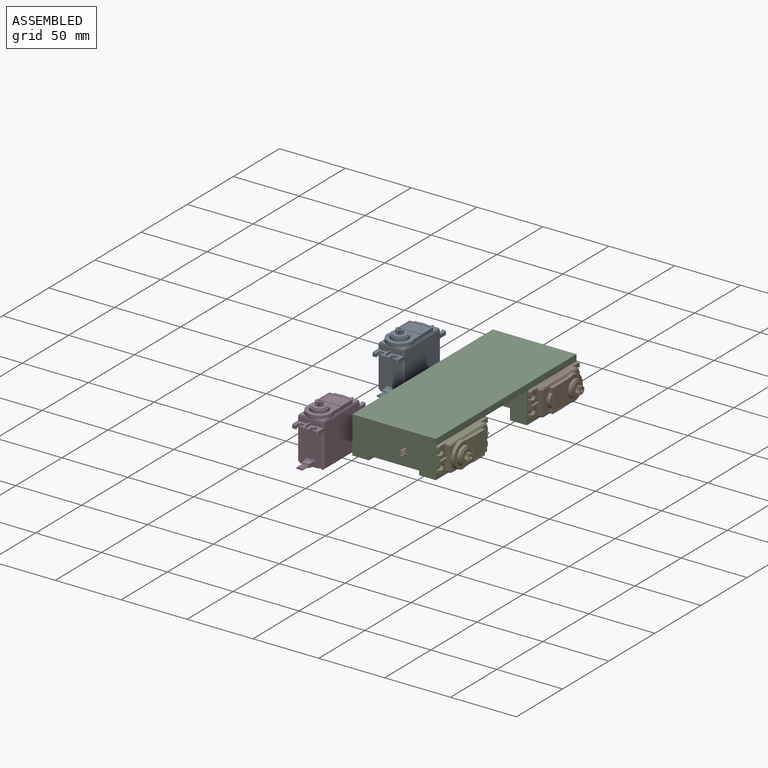
[diagram: assembled view]
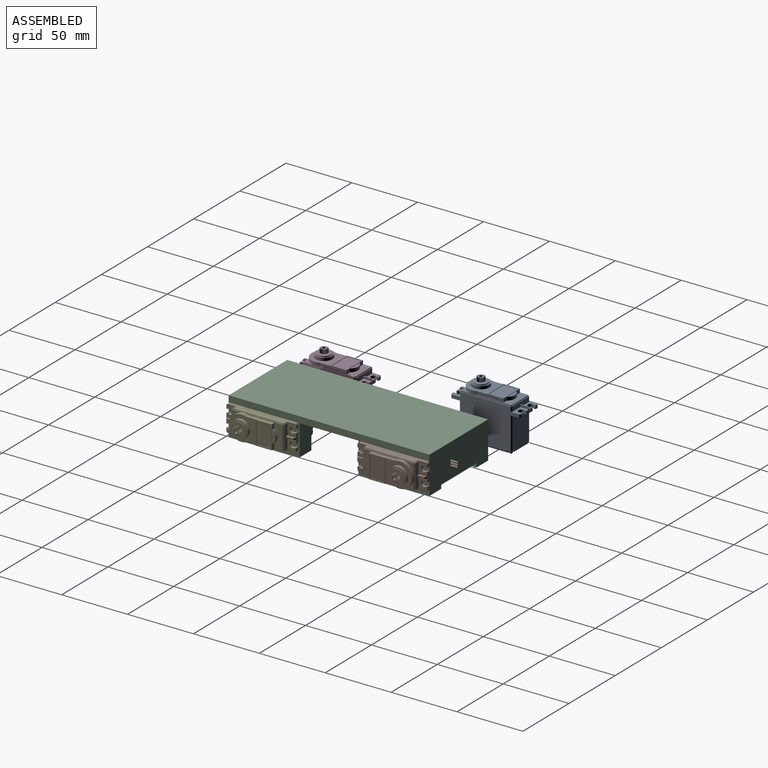
[diagram: assembled view, second angle]
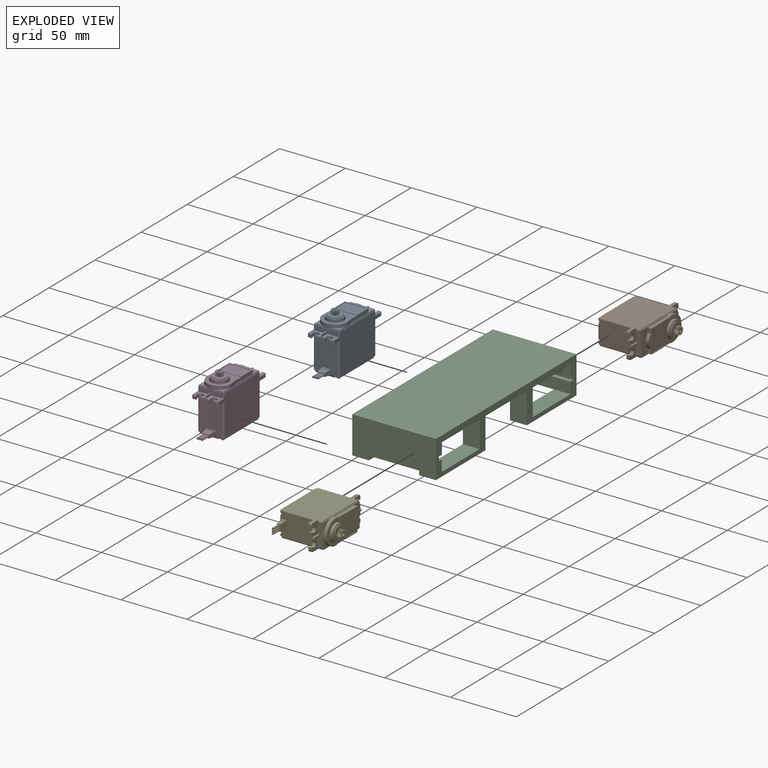
[diagram: exploded view]
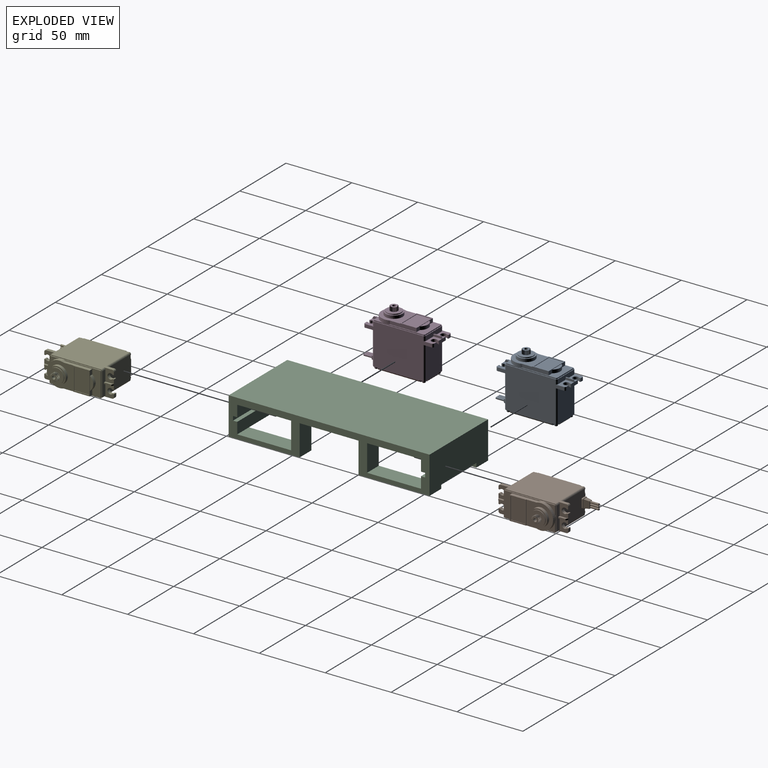
[diagram: exploded view, second angle]
ASSEMBLY  parts=5 mates=6
PART A: 287 faces, bbox 20.2x58.4x42.2 mm
  f0: plane 7x4.25mm, normal (0,-1,0), area 7.6mm2, adj f268,f269,f270,f271,f273,f274,f275,f276
  f1: plane 25.4x17.27mm, normal (0,-1,0), area 404.8mm2, adj f123,f141,f143,f144,f165,f167,f169,f172
  f2: plane 7.27x2.51mm, normal (0,-1,0), area 18.3mm2, adj f114,f115,f123,f127,f128,f266
  f3: plane 6.48x1.55mm, normal (-1,0,0), area 9.3mm2, adj f126,f127,f266,f267
  f4: plane 6.48x1.55mm, normal (1,0,0), area 9.3mm2, adj f126,f128,f266,f267
  f5: plane 20.28x18.87mm, normal (0,0,1), area 202.6mm2, adj f88,f89,f92,f95,f258
  f6: plane 10.3x2.54mm, normal (0,0,1), area 18.3mm2, adj f93,f94
  f7: plane 0.5x0.49mm, normal (0,0,-1), area 0.2mm2, adj f193,f204,f256
  f8: plane 0.48x0.46mm, normal (0,0,-1), area 0.2mm2, adj f201,f202,f256
  f9: plane 0.51x0.47mm, normal (0,0,-1), area 0.2mm2, adj f198,f199,f256
  f10: plane 0.48x0.46mm, normal (0,0,-1), area 0.2mm2, adj f209,f210,f255
  f11: plane 0.5x0.49mm, normal (0,0,-1), area 0.2mm2, adj f218,f220,f255
  f12: plane 0.52x0.5mm, normal (0,0,-1), area 0.2mm2, adj f215,f216,f255
  f13: plane 0.52x0.5mm, normal (0,0,-1), area 0.2mm2, adj f230,f231,f254
  f14: plane 0.51x0.47mm, normal (0,0,-1), area 0.2mm2, adj f227,f228,f254
  f15: plane 0.48x0.46mm, normal (0,0,-1), area 0.2mm2, adj f224,f225,f254
  f16: plane 0.51x0.47mm, normal (0,0,-1), area 0.2mm2, adj f243,f244,f253
  f17: plane 0.52x0.5mm, normal (0,0,-1), area 0.2mm2, adj f240,f241,f253
  f18: plane 0.5x0.49mm, normal (0,0,-1), area 0.2mm2, adj f238,f249,f253
  f19: plane 3.96x3.18mm, normal (0,0,-1), area 5mm2, adj f185,f187,f189,f190,f234
  f20: plane 3.96x3.18mm, normal (0,0,-1), area 5mm2, adj f161,f163,f165,f166,f219
  f21: plane 25.4x17.27mm, normal (0,1,0), area 434.3mm2, adj f121,f139,f145,f146,f177,f180,f189,f191
  f22: plane 50.29x31.45mm, normal (1,0,0), area 1203.3mm2, adj f104,f121,f123,f128,f130,f142,f143,f146
  f23: plane 50.29x31.45mm, normal (-1,0,0), area 1203.3mm2, adj f104,f121,f123,f127,f132,f140,f144,f145
  f24: cylinder r=2.81mm len=3.17mm, axis (0,0,1), area 0.7mm2, adj f44,f46,f84,f85
  f25: cylinder r=2.81mm len=3.17mm, axis (0,0,1), area 0.7mm2, adj f44,f46,f82,f83
  f26: cylinder r=2.81mm len=3.17mm, axis (0,0,1), area 0.7mm2, adj f44,f46,f80,f81
  f27: cylinder r=2.81mm len=3.17mm, axis (0,0,1), area 0.7mm2, adj f44,f46,f78,f79
  f28: cylinder r=2.81mm len=3.17mm, axis (0,0,1), area 0.7mm2, adj f44,f46,f76,f77
  f29: cylinder r=2.81mm len=3.17mm, axis (0,0,1), area 0.7mm2, adj f44,f46,f74,f75
  f30: cylinder r=2.81mm len=3.17mm, axis (0,0,1), area 0.7mm2, adj f44,f46,f72,f73
  f31: cylinder r=2.81mm len=3.17mm, axis (0,0,1), area 0.7mm2, adj f44,f46,f70,f71
  f32: cylinder r=2.81mm len=3.17mm, axis (0,0,1), area 0.7mm2, adj f44,f46,f68,f69
  f33: cylinder r=2.81mm len=3.17mm, axis (0,0,1), area 0.7mm2, adj f44,f46,f66,f67
  f34: cylinder r=2.81mm len=3.17mm, axis (0,0,1), area 0.7mm2, adj f44,f46,f64,f65
  f35: cylinder r=2.81mm len=3.17mm, axis (0,0,1), area 0.7mm2, adj f44,f46,f62,f63
  f36: cylinder r=2.81mm len=3.17mm, axis (0,0,1), area 0.7mm2, adj f44,f46,f60,f61
  f37: cylinder r=2.81mm len=3.17mm, axis (0,0,1), area 0.7mm2, adj f44,f46,f58,f59
  f38: cylinder r=2.81mm len=3.17mm, axis (0,0,1), area 0.7mm2, adj f44,f46,f56,f57
  f39: cylinder r=2.81mm len=3.17mm, axis (0,0,1), area 0.7mm2, adj f44,f46,f54,f55
  f40: cylinder r=2.81mm len=3.17mm, axis (0,0,1), area 0.7mm2, adj f44,f46,f52,f53
  f41: cylinder r=2.81mm len=3.17mm, axis (0,0,1), area 0.7mm2, adj f44,f46,f50,f51
  f42: cylinder r=2.81mm len=3.17mm, axis (0,0,1), area 0.7mm2, adj f44,f46,f47,f49
  f43: cylinder r=5.49mm len=10.97mm, axis (0,0,1), area 22.2mm2, adj f44,f87
  f44: plane 10.97x10.97mm, normal (0,0,1), area 73.7mm2, adj f24,f25,f26,f27,f28,f29,f30,f31
  f45: cylinder r=2.81mm len=3.17mm, axis (0,0,1), area 0.7mm2, adj f44,f46,f48,f86
  f46: plane 5.6x5.6mm, normal (0,0,1), area 15.8mm2, adj f24,f25,f26,f27,f28,f29,f30,f31
  f47: plane 3.17x0.58mm, normal (-0.9,0.43,0), area 2mm2, adj f42,f44,f46,f48
  f48: plane 3.17x0.56mm, normal (0.83,0.56,0), area 2.2mm2, adj f44,f45,f46,f47
  f49: plane 3.17x0.65mm, normal (0.96,0.28,0), area 2.2mm2, adj f42,f44,f46,f50
  f50: plane 3.17x0.46mm, normal (-0.72,0.69,0), area 2mm2, adj f41,f44,f46,f49
  f51: plane 3.17x0.68mm, normal (1,-0.03,0), area 2.2mm2, adj f41,f44,f46,f52
  f52: plane 3.17x0.56mm, normal (-0.47,0.88,0), area 2mm2, adj f40,f44,f46,f51
  f53: plane 3.17x0.64mm, normal (0.94,-0.34,0), area 2.2mm2, adj f40,f44,f46,f54
  f54: plane 3.17x0.63mm, normal (-0.18,0.98,0), area 2mm2, adj f39,f44,f46,f53
  f55: plane 3.17x0.54mm, normal (0.79,-0.61,0), area 2.2mm2, adj f39,f44,f46,f56
  f56: plane 3.17x0.63mm, normal (0.13,0.99,0), area 2mm2, adj f38,f44,f46,f55
  f57: plane 3.17x0.56mm, normal (0.56,-0.83,0), area 2.2mm2, adj f38,f44,f46,f58
  f58: plane 3.17x0.58mm, normal (0.43,0.9,0), area 2mm2, adj f37,f44,f46,f57
  f59: plane 3.17x0.65mm, normal (0.28,-0.96,0), area 2.2mm2, adj f37,f44,f46,f60
  f60: plane 3.17x0.46mm, normal (0.69,0.72,0), area 2mm2, adj f36,f44,f46,f59
  f61: plane 3.17x0.68mm, normal (-0.03,-1,0), area 2.2mm2, adj f36,f44,f46,f62
  f62: plane 3.17x0.56mm, normal (0.88,0.47,0), area 2mm2, adj f35,f44,f46,f61
  f63: plane 3.17x0.64mm, normal (-0.34,-0.94,0), area 2.2mm2, adj f35,f44,f46,f64
  f64: plane 3.17x0.63mm, normal (0.98,0.18,0), area 2mm2, adj f34,f44,f46,f63
  f65: plane 3.17x0.54mm, normal (-0.61,-0.79,0), area 2.2mm2, adj f34,f44,f46,f66
  f66: plane 3.17x0.63mm, normal (0.99,-0.13,0), area 2mm2, adj f33,f44,f46,f65
  f67: plane 3.17x0.56mm, normal (-0.83,-0.56,0), area 2.2mm2, adj f33,f44,f46,f68
  f68: plane 3.17x0.58mm, normal (0.9,-0.43,0), area 2mm2, adj f32,f44,f46,f67
  f69: plane 3.17x0.65mm, normal (-0.96,-0.28,0), area 2.2mm2, adj f32,f44,f46,f70
  f70: plane 3.17x0.46mm, normal (0.72,-0.69,0), area 2mm2, adj f31,f44,f46,f69
  f71: plane 3.17x0.68mm, normal (-1,0.03,0), area 2.2mm2, adj f31,f44,f46,f72
  f72: plane 3.17x0.56mm, normal (0.47,-0.88,0), area 2mm2, adj f30,f44,f46,f71
  f73: plane 3.17x0.64mm, normal (-0.94,0.34,0), area 2.2mm2, adj f30,f44,f46,f74
  f74: plane 3.17x0.63mm, normal (0.18,-0.98,0), area 2mm2, adj f29,f44,f46,f73
  f75: plane 3.17x0.54mm, normal (-0.79,0.61,0), area 2.2mm2, adj f29,f44,f46,f76
  f76: plane 3.17x0.63mm, normal (-0.13,-0.99,0), area 2mm2, adj f28,f44,f46,f75
  f77: plane 3.17x0.56mm, normal (-0.56,0.83,0), area 2.2mm2, adj f28,f44,f46,f78
  f78: plane 3.17x0.58mm, normal (-0.43,-0.9,0), area 2mm2, adj f27,f44,f46,f77
  f79: plane 3.17x0.65mm, normal (-0.28,0.96,0), area 2.2mm2, adj f27,f44,f46,f80
  f80: plane 3.17x0.46mm, normal (-0.69,-0.72,0), area 2mm2, adj f26,f44,f46,f79
  f81: plane 3.17x0.68mm, normal (0.03,1,0), area 2.2mm2, adj f26,f44,f46,f82
  f82: plane 3.17x0.56mm, normal (-0.88,-0.47,0), area 2mm2, adj f25,f44,f46,f81
  f83: plane 3.17x0.64mm, normal (0.34,0.94,0), area 2.2mm2, adj f25,f44,f46,f84
  f84: plane 3.17x0.63mm, normal (-0.98,-0.18,0), area 2mm2, adj f24,f44,f46,f83
  f85: plane 3.17x0.54mm, normal (0.61,0.79,0), area 2.2mm2, adj f24,f44,f46,f86
  f86: plane 3.17x0.63mm, normal (-0.99,0.13,0), area 2mm2, adj f44,f45,f46,f85
  f87: plane 12.98x12.98mm, normal (0,0,1), area 37.7mm2, adj f43,f88
  f88: cylinder r=6.49mm len=12.98mm, axis (0,0,1), area 92.3mm2, adj f5,f87
  f89: cylinder r=9.44mm len=18.87mm, axis (0,0,1), area 97.9mm2, adj f5,f90,f91,f92,f95,f96,f97,f99
  f90: plane 8.3x7.07mm, normal (0,0,1), area 16.4mm2, adj f89,f100,f101,f154
  f91: plane 8.3x7.07mm, normal (0,0,1), area 16.4mm2, adj f89,f102,f103,f153
  f92: plane 20.14x2.86mm, normal (1,0,0), area 55.1mm2, adj f5,f89,f93,f96,f257,f258
  f93: plane 17.78x2.86mm, normal (0,1,0), area 24.6mm2, adj f6,f92,f94,f95,f96,f257
  f94: cylinder r=6.49mm len=10.3mm, axis (0,0,1), area 30.2mm2, adj f6,f93,f96
  f95: plane 20.14x2.86mm, normal (-1,0,0), area 55.1mm2, adj f5,f89,f93,f96,f257,f258
  f96: plane 28.87x18.8mm, normal (0,0,1), area 123.6mm2, adj f89,f92,f93,f94,f95,f97,f98,f99
  f97: plane 28.24x0.76mm, normal (1,0,0), area 21.5mm2, adj f89,f96,f104,f155
  f98: plane 17.53x0.76mm, normal (0,1,0), area 13.4mm2, adj f96,f104,f155,f156
  f99: plane 28.24x0.76mm, normal (-1,0,0), area 21.5mm2, adj f89,f96,f104,f156
  f100: plane 7.66x0.76mm, normal (-1,0,0), area 5.8mm2, adj f89,f90,f104,f154
  f101: plane 6.43x0.76mm, normal (0,-1,0), area 4.9mm2, adj f89,f90,f104,f154
  f102: plane 6.43x0.76mm, normal (0,-1,0), area 4.9mm2, adj f89,f91,f104,f153
  f103: plane 7.66x0.76mm, normal (1,0,0), area 5.8mm2, adj f89,f91,f104,f153
  f104: plane 39.88x19.81mm, normal (0,0,1), area 57.6mm2, adj f22,f23,f89,f97,f98,f99,f100,f101
  f105: plane 2.51x1.03mm, normal (-1,0,0), area 2.6mm2, adj f106,f120,f121,f130
  f106: cylinder r=2.18mm len=4.37mm, axis (0,0,1), area 26.6mm2, adj f105,f107,f121,f130
  f107: plane 2.51x1.03mm, normal (1,0,0), area 2.6mm2, adj f106,f108,f121,f130
  f108: plane 7.27x2.51mm, normal (0,1,0), area 18.3mm2, adj f107,f109,f121,f130,f132,f264
  f109: plane 2.51x1.03mm, normal (-1,0,0), area 2.6mm2, adj f108,f110,f121,f132
  f110: cylinder r=2.18mm len=4.37mm, axis (0,0,1), area 26.6mm2, adj f109,f111,f121,f132
  f111: plane 2.51x1.03mm, normal (1,0,0), area 2.6mm2, adj f110,f119,f121,f132
  f112: plane 2.51x1.03mm, normal (-1,0,0), area 2.6mm2, adj f113,f123,f124,f128
  f113: cylinder r=2.18mm len=4.37mm, axis (0,0,1), area 26.6mm2, adj f112,f114,f123,f128
  f114: plane 2.51x1.03mm, normal (1,0,0), area 2.6mm2, adj f2,f113,f123,f128
  f115: plane 2.51x1.03mm, normal (-1,0,0), area 2.6mm2, adj f2,f116,f123,f127
  f116: cylinder r=2.18mm len=4.37mm, axis (0,0,1), area 26.6mm2, adj f115,f117,f123,f127
  f117: plane 2.51x1.03mm, normal (1,0,0), area 2.6mm2, adj f116,f118,f123,f127
  f118: plane 2.51x2.11mm, normal (0,-1,0), area 5.3mm2, adj f117,f123,f127,f150
  f119: plane 2.51x2.11mm, normal (0,1,0), area 5.3mm2, adj f111,f121,f132,f152
  f120: plane 2.51x2.11mm, normal (0,1,0), area 5.3mm2, adj f105,f121,f130,f151
  f121: plane 19.81x7.75mm, normal (0,0,-1), area 94.6mm2, adj f21,f22,f23,f105,f106,f107,f108,f109
  f122: plane 37.61x17.54mm, normal (0,0,-1), area 621.9mm2, adj f133,f135,f136,f138,f139,f140,f141,f142
  f123: plane 19.81x7.75mm, normal (0,0,-1), area 94.6mm2, adj f1,f2,f22,f23,f112,f113,f114,f115
  f124: plane 2.51x2.11mm, normal (0,-1,0), area 5.3mm2, adj f112,f123,f128,f149
  f125: plane 17.27x3.53mm, normal (0,1,0), area 59.5mm2, adj f104,f129,f130,f131,f132,f157,f158,f265
  f126: plane 17.27x3.53mm, normal (0,-1,0), area 59.4mm2, adj f3,f4,f104,f127,f128,f159,f160,f267
  f127: plane 9.4x7.75mm, normal (0,0,1), area 44mm2, adj f2,f3,f23,f115,f116,f117,f118,f126
  f128: plane 9.4x7.75mm, normal (0,0,1), area 44mm2, adj f2,f4,f22,f112,f113,f114,f124,f126
  f129: plane 6.48x1.55mm, normal (1,0,0), area 9.4mm2, adj f125,f130,f264,f265
  f130: plane 9.42x7.75mm, normal (0,0,1), area 44.1mm2, adj f22,f105,f106,f107,f108,f120,f125,f129
  f131: plane 6.48x1.55mm, normal (-1,0,0), area 9.4mm2, adj f125,f132,f264,f265
  f132: plane 9.42x7.75mm, normal (0,0,1), area 44.1mm2, adj f23,f108,f109,f110,f111,f119,f125,f131
  f133: extruded ~4.23x3.52mm, area 7mm2, adj f122,f140,f141,f170,f174,f176
  f134: plane 3.96x3.18mm, normal (0,0,-1), area 5mm2, adj f169,f171,f173,f174,f205
  f135: extruded ~4.23x3.52mm, area 7mm2, adj f122,f141,f142,f162,f166,f168
  f136: extruded ~4.23x3.52mm, area 7mm2, adj f122,f139,f142,f178,f182,f184
  f137: plane 3.96x3.18mm, normal (0,0,-1), area 5mm2, adj f177,f179,f181,f182,f250
  f138: extruded ~4.23x3.52mm, area 7mm2, adj f122,f139,f140,f186,f190,f192
  f139: plane 11.09x1.4mm, normal (0,0.71,-0.71), area 19.2mm2, adj f21,f122,f136,f138,f178,f192
  f140: plane 32.48x1.42mm, normal (-0.71,0,-0.71), area 57.9mm2, adj f23,f122,f133,f138,f176,f186
  f141: plane 11.09x1.4mm, normal (0,-0.71,-0.71), area 19.2mm2, adj f1,f122,f133,f135,f168,f170,f269
  f142: plane 32.48x1.42mm, normal (0.71,0,-0.71), area 57.9mm2, adj f22,f122,f135,f136,f162,f184
  f143: cylinder r=1.27mm len=24.77mm, axis (0,0,1), area 49.4mm2, adj f1,f22,f123,f163
  f144: cylinder r=1.27mm len=24.77mm, axis (0,0,-1), area 49.4mm2, adj f1,f23,f123,f171
  f145: cylinder r=1.27mm len=24.77mm, axis (0,0,1), area 49.4mm2, adj f21,f23,f121,f187
  f146: cylinder r=1.27mm len=24.77mm, axis (0,0,-1), area 49.4mm2, adj f21,f22,f121,f179
  f147: cylinder r=1.27mm len=6.07mm, axis (0,0,1), area 48.5mm2, adj f46,f148
  f148: plane 2.54x2.54mm, normal (0,0,1), area 5.1mm2, adj f147
  f149: cylinder r=1.27mm len=2.51mm, axis (0,0,1), area 5mm2, adj f22,f123,f124,f128
  f150: cylinder r=1.27mm len=2.51mm, axis (0,0,-1), area 5mm2, adj f23,f118,f123,f127
  f151: cylinder r=1.27mm len=2.51mm, axis (0,0,-1), area 5mm2, adj f22,f120,f121,f130
  f152: cylinder r=1.27mm len=2.51mm, axis (0,0,1), area 5mm2, adj f23,f119,f121,f132
  f153: cylinder r=0.64mm len=0.76mm, axis (0,0,-1), area 0.8mm2, adj f91,f102,f103,f104
  f154: cylinder r=0.64mm len=0.76mm, axis (0,0,1), area 0.8mm2, adj f90,f100,f101,f104
  f155: cylinder r=0.64mm len=0.76mm, axis (0,0,1), area 0.8mm2, adj f96,f97,f98,f104
  f156: cylinder r=0.64mm len=0.76mm, axis (0,0,-1), area 0.8mm2, adj f96,f98,f99,f104
  f157: cylinder r=1.27mm len=3.53mm, axis (0,0,-1), area 7mm2, adj f22,f104,f125,f130
  f158: cylinder r=1.27mm len=3.53mm, axis (0,0,1), area 7mm2, adj f23,f104,f125,f132
  f159: cylinder r=1.27mm len=3.53mm, axis (0,0,-1), area 7mm2, adj f23,f104,f126,f127
  f160: cylinder r=1.27mm len=3.53mm, axis (0,0,1), area 7mm2, adj f22,f104,f126,f128
  f161: cylinder r=0.32mm len=2.18mm, axis (0,-1,0), area 1.1mm2, adj f20,f22,f163,f164
  f162: cylinder r=0.32mm len=0.36mm, axis (0,0,-1), area 0.1mm2, adj f135,f142,f164
  f163: torus R=0.95mm, axis (0,0,-1), area 0.9mm2, adj f20,f143,f161,f165
  f164: bspline ~0.79x0.75mm, area 0.4mm2, adj f22,f161,f162,f166
  f165: cylinder r=0.32mm len=3mm, axis (1,0,0), area 1.5mm2, adj f1,f20,f163,f167
  f166: bspline ~4.78x4.68mm, area 3mm2, adj f20,f135,f164,f167
  f167: bspline ~0.78x0.75mm, area 0.3mm2, adj f1,f165,f166,f168
  f168: cylinder r=0.32mm len=0.32mm, axis (0,0,-1), area 0.1mm2, adj f135,f141,f167
  f169: cylinder r=0.32mm len=3mm, axis (-1,0,0), area 1.5mm2, adj f1,f134,f171,f172
  f170: cylinder r=0.32mm len=0.32mm, axis (0,0,-1), area 0.1mm2, adj f133,f141,f172
  f171: torus R=0.95mm, axis (0,0,1), area 0.9mm2, adj f134,f144,f169,f173
  f172: bspline ~0.78x0.75mm, area 0.3mm2, adj f1,f169,f170,f174
  f173: cylinder r=0.32mm len=2.18mm, axis (0,1,0), area 1.1mm2, adj f23,f134,f171,f175
  f174: bspline ~4.78x4.68mm, area 3mm2, adj f133,f134,f172,f175
  f175: bspline ~0.78x0.75mm, area 0.4mm2, adj f23,f173,f174,f176
  f176: cylinder r=0.32mm len=0.36mm, axis (0,0,-1), area 0.1mm2, adj f133,f140,f175
  f177: cylinder r=0.32mm len=3mm, axis (-1,0,0), area 1.5mm2, adj f21,f137,f179,f180
  f178: cylinder r=0.32mm len=0.32mm, axis (0,0,-1), area 0.1mm2, adj f136,f139,f180
  f179: torus R=0.95mm, axis (0,0,1), area 0.9mm2, adj f137,f146,f177,f181
  f180: bspline ~0.78x0.75mm, area 0.3mm2, adj f21,f177,f178,f182
  f181: cylinder r=0.32mm len=2.18mm, axis (0,1,0), area 1.1mm2, adj f22,f137,f179,f183
  f182: bspline ~4.78x4.68mm, area 3mm2, adj f136,f137,f180,f183
  f183: bspline ~0.78x0.75mm, area 0.4mm2, adj f22,f181,f182,f184
  f184: cylinder r=0.32mm len=0.36mm, axis (0,0,-1), area 0.1mm2, adj f136,f142,f183
  f185: cylinder r=0.32mm len=2.18mm, axis (0,-1,0), area 1.1mm2, adj f19,f23,f187,f188
  f186: cylinder r=0.32mm len=0.36mm, axis (0,0,-1), area 0.1mm2, adj f138,f140,f188
  f187: torus R=0.95mm, axis (0,0,-1), area 0.9mm2, adj f19,f145,f185,f189
  f188: bspline ~0.79x0.75mm, area 0.4mm2, adj f23,f185,f186,f190
  f189: cylinder r=0.32mm len=3mm, axis (1,0,0), area 1.5mm2, adj f19,f21,f187,f191
  f190: bspline ~4.78x4.68mm, area 3mm2, adj f19,f138,f188,f191
  f191: bspline ~0.78x0.75mm, area 0.3mm2, adj f21,f189,f190,f192
  f192: cylinder r=0.32mm len=0.32mm, axis (0,0,-1), area 0.1mm2, adj f138,f139,f191
  f193: plane 1.6x0.75mm, normal (0,1,0), area 1.2mm2, adj f7,f194,f204,f207,f256
  f194: plane 1.55x0.24mm, normal (-1,0,0), area 0.4mm2, adj f193,f195,f207,f256
  f195: plane 1.59x0.74mm, normal (0,-1,0), area 1.2mm2, adj f194,f196,f206,f207,f256
  f196: plane 1.59x0.6mm, normal (-1,0,0), area 1mm2, adj f195,f197,f206,f207,f256
  f197: plane 1.59x0.29mm, normal (0,-1,0), area 0.4mm2, adj f196,f198,f207,f256
  f198: plane 1.59x0.6mm, normal (1,0,0), area 1mm2, adj f9,f197,f199,f207,f256
  f199: plane 1.59x0.75mm, normal (0,-1,0), area 1.2mm2, adj f9,f198,f200,f207,f256
  f200: plane 1.53x0.24mm, normal (1,0,0), area 0.4mm2, adj f199,f201,f207,f256
  f201: plane 1.6x0.75mm, normal (0,1,0), area 1.2mm2, adj f8,f200,f202,f207,f256
  f202: plane 1.59x0.62mm, normal (1,0,0), area 1mm2, adj f8,f201,f203,f207,f256
  f203: plane 1.58x0.28mm, normal (0,1,0), area 0.4mm2, adj f202,f204,f207,f256
  f204: plane 1.59x0.62mm, normal (-1,0,0), area 1mm2, adj f7,f193,f203,f207,f256
  f205: cylinder r=1.27mm len=2.54mm, axis (0,0,1), area 7.6mm2, adj f134,f256
  f206: plane 0.52x0.5mm, normal (0,0,-1), area 0.2mm2, adj f195,f196,f256
  f207: plane 1.75x1.46mm, normal (0,0,-1), area 0.8mm2, adj f193,f194,f195,f196,f197,f198,f199,f200
  f208: plane 1.58x0.28mm, normal (0,1,0), area 0.4mm2, adj f209,f220,f222,f255
  f209: plane 1.59x0.62mm, normal (-1,0,0), area 1mm2, adj f10,f208,f210,f222,f255
  f210: plane 1.6x0.75mm, normal (0,1,0), area 1.2mm2, adj f10,f209,f211,f222,f255
  f211: plane 1.53x0.24mm, normal (-1,0,0), area 0.4mm2, adj f210,f212,f222,f255
  f212: plane 1.59x0.75mm, normal (0,-1,0), area 1.2mm2, adj f211,f213,f221,f222,f255
  f213: plane 1.59x0.6mm, normal (-1,0,0), area 1mm2, adj f212,f214,f221,f222,f255
  f214: plane 1.59x0.29mm, normal (0,-1,0), area 0.4mm2, adj f213,f215,f222,f255
  f215: plane 1.59x0.6mm, normal (1,0,0), area 1mm2, adj f12,f214,f216,f222,f255
  f216: plane 1.59x0.74mm, normal (0,-1,0), area 1.2mm2, adj f12,f215,f217,f222,f255
  f217: plane 1.55x0.24mm, normal (1,0,0), area 0.4mm2, adj f216,f218,f222,f255
  f218: plane 1.6x0.75mm, normal (0,1,0), area 1.2mm2, adj f11,f217,f220,f222,f255
  f219: cylinder r=1.27mm len=2.54mm, axis (0,0,1), area 7.6mm2, adj f20,f255
  f220: plane 1.59x0.62mm, normal (1,0,0), area 1mm2, adj f11,f208,f218,f222,f255
  f221: plane 0.51x0.47mm, normal (0,0,-1), area 0.2mm2, adj f212,f213,f255
  f222: plane 1.75x1.46mm, normal (0,0,-1), area 0.8mm2, adj f208,f209,f210,f211,f212,f213,f214,f215
  f223: plane 1.59x0.29mm, normal (0,-1,0), area 0.4mm2, adj f224,f235,f237,f254
  f224: plane 1.59x0.62mm, normal (1,0,0), area 1mm2, adj f15,f223,f225,f237,f254
  f225: plane 1.6x0.75mm, normal (0,-1,0), area 1.2mm2, adj f15,f224,f226,f237,f254
  f226: plane 1.53x0.24mm, normal (1,0,0), area 0.4mm2, adj f225,f227,f237,f254
  f227: plane 1.59x0.75mm, normal (0,1,0), area 1.2mm2, adj f14,f226,f228,f237,f254
  f228: plane 1.59x0.6mm, normal (1,0,0), area 1mm2, adj f14,f227,f229,f237,f254
  f229: plane 1.58x0.28mm, normal (0,1,0), area 0.4mm2, adj f228,f230,f237,f254
  f230: plane 1.59x0.6mm, normal (-1,0,0), area 1mm2, adj f13,f229,f231,f237,f254
  f231: plane 1.59x0.74mm, normal (0,1,0), area 1.2mm2, adj f13,f230,f232,f237,f254
  f232: plane 1.55x0.24mm, normal (-1,0,0), area 0.4mm2, adj f231,f233,f237,f254
  f233: plane 1.6x0.75mm, normal (0,-1,0), area 1.2mm2, adj f232,f235,f236,f237,f254
  f234: cylinder r=1.27mm len=2.54mm, axis (0,0,1), area 7.6mm2, adj f19,f254
  f235: plane 1.59x0.62mm, normal (-1,0,0), area 1mm2, adj f223,f233,f236,f237,f254
  f236: plane 0.5x0.49mm, normal (0,0,-1), area 0.2mm2, adj f233,f235,f254
  f237: plane 1.75x1.46mm, normal (0,0,-1), area 0.8mm2, adj f223,f224,f225,f226,f227,f228,f229,f230
  f238: plane 1.6x0.75mm, normal (0,-1,0), area 1.2mm2, adj f18,f239,f249,f252,f253
  f239: plane 1.55x0.24mm, normal (1,0,0), area 0.4mm2, adj f238,f240,f252,f253
  f240: plane 1.59x0.74mm, normal (0,1,0), area 1.2mm2, adj f17,f239,f241,f252,f253
  f241: plane 1.59x0.6mm, normal (1,0,0), area 1mm2, adj f17,f240,f242,f252,f253
  f242: plane 1.58x0.28mm, normal (0,1,0), area 0.4mm2, adj f241,f243,f252,f253
  f243: plane 1.59x0.6mm, normal (-1,0,0), area 1mm2, adj f16,f242,f244,f252,f253
  f244: plane 1.59x0.75mm, normal (0,1,0), area 1.2mm2, adj f16,f243,f245,f252,f253
  f245: plane 1.53x0.24mm, normal (-1,0,0), area 0.4mm2, adj f244,f246,f252,f253
  f246: plane 1.6x0.75mm, normal (0,-1,0), area 1.2mm2, adj f245,f247,f251,f252,f253
  f247: plane 1.59x0.62mm, normal (-1,0,0), area 1mm2, adj f246,f248,f251,f252,f253
  f248: plane 1.59x0.29mm, normal (0,-1,0), area 0.4mm2, adj f247,f249,f252,f253
  f249: plane 1.59x0.62mm, normal (1,0,0), area 1mm2, adj f18,f238,f248,f252,f253
  f250: cylinder r=1.27mm len=2.54mm, axis (0,0,1), area 7.6mm2, adj f137,f253
  f251: plane 0.48x0.46mm, normal (0,0,-1), area 0.2mm2, adj f246,f247,f253
  f252: plane 1.75x1.46mm, normal (0,0,-1), area 0.8mm2, adj f238,f239,f240,f241,f242,f243,f244,f245
  f253: torus R=0.64mm, axis (0,0,-1), area 6.3mm2, adj f16,f17,f18,f238,f239,f240,f241,f242
  f254: torus R=0.64mm, axis (0,0,-1), area 6.3mm2, adj f13,f14,f15,f223,f224,f225,f226,f227
  f255: torus R=0.64mm, axis (0,0,-1), area 6.3mm2, adj f10,f11,f12,f208,f209,f210,f211,f212
  f256: torus R=0.64mm, axis (0,0,-1), area 6.3mm2, adj f7,f8,f9,f193,f194,f195,f196,f197
  f257: plane 17.78x12.46mm, normal (0,0,1), area 44.5mm2, adj f92,f93,f95,f258,f260,f261,f262,f263
  f258: plane 17.78x0.32mm, normal (0,-1,0), area 5.6mm2, adj f5,f92,f95,f257
  f259: plane 16.19x10.93mm, normal (0,0,1), area 177.1mm2, adj f260,f261,f262,f263
  f260: plane 10.93x0.37mm, normal (1,0,0), area 4mm2, adj f257,f259,f261,f263
  f261: plane 16.19x0.37mm, normal (0,1,0), area 6mm2, adj f257,f259,f260,f262
  f262: plane 10.93x0.37mm, normal (-1,0,0), area 4mm2, adj f257,f259,f261,f263
  f263: plane 16.19x0.37mm, normal (0,-1,0), area 6mm2, adj f257,f259,f260,f262
  f264: plane 1.55x0.97mm, normal (0,0.88,0.48), area 1.7mm2, adj f108,f129,f131,f265
  f265: plane 5.62x0.97mm, normal (0,0,1), area 5.5mm2, adj f125,f129,f131,f264
  f266: plane 1.55x1.02mm, normal (0,-0.85,0.52), area 1.8mm2, adj f2,f3,f4,f267
  f267: plane 5.52x1.02mm, normal (0,0,1), area 5.6mm2, adj f3,f4,f126,f266
  f268: plane 2.98x1.27mm, normal (-1,0,0), area 3.8mm2, adj f0,f1,f277,f280
  f269: plane 5.73x1.27mm, normal (0,0,-1), area 7.3mm2, adj f0,f141,f277,f278
  f270: plane 2.98x1.27mm, normal (1,0,0), area 3.8mm2, adj f0,f1,f278,f279
  f271: plane 5.73x1.27mm, normal (0,0,1), area 7.3mm2, adj f0,f1,f279,f280
  f272: plane 5.08x2.54mm, normal (0,-1,0), area 7.4mm2, adj f273,f274,f275,f276,f281,f283,f285
  f273: plane 6.24x4.25mm, normal (0,-0.11,0.99), area 24.2mm2, adj f0,f272,f274,f275
  f274: plane 4.25x3.49mm, normal (-0.99,-0.13,0), area 13mm2, adj f0,f272,f273,f276
  f275: plane 4.25x3.49mm, normal (0.99,-0.13,0), area 13mm2, adj f0,f272,f273,f276
  f276: plane 6.24x4.25mm, normal (0,-0.11,-0.99), area 24.2mm2, adj f0,f272,f274,f275
  f277: cylinder r=0.64mm len=1.27mm, axis (0,1,0), area 1.3mm2, adj f0,f1,f268,f269
  f278: cylinder r=0.64mm len=1.27mm, axis (0,1,0), area 1.3mm2, adj f0,f1,f269,f270
  f279: cylinder r=0.64mm len=1.27mm, axis (0,1,0), area 1.3mm2, adj f0,f1,f270,f271
  f280: cylinder r=0.64mm len=1.27mm, axis (0,1,0), area 1.3mm2, adj f0,f1,f268,f271
  f281: cylinder r=0.76mm len=6.35mm, axis (0,1,0), area 30.4mm2, adj f272,f282
  f282: plane 1.52x1.52mm, normal (0,-1,0), area 1.8mm2, adj f281
  f283: cylinder r=0.76mm len=6.35mm, axis (0,1,0), area 30.4mm2, adj f272,f284
  f284: plane 1.52x1.52mm, normal (0,-1,0), area 1.8mm2, adj f283
  f285: cylinder r=0.76mm len=6.35mm, axis (0,1,0), area 30.4mm2, adj f272,f286
  f286: plane 1.52x1.52mm, normal (0,-1,0), area 1.8mm2, adj f285
PART B: same geometry as A
PART C: 42 faces, bbox 152.4x28.3x63.5 mm
  f0: plane 139.45x31.75mm, normal (0,-1,0), area 4262.9mm2, adj f1,f9,f28,f31,f32,f33,f34,f37
  f1: plane 63.5x8.57mm, normal (-1,0,0), area 539.3mm2, adj f0,f4,f5,f25,f28,f39,f40,f41
  f2: plane 63.5x8.57mm, normal (1,0,0), area 544.4mm2, adj f4,f7,f12,f24,f28,f29
  f3: plane 63.5x8.57mm, normal (-1,0,0), area 544.4mm2, adj f4,f6,f19,f26,f28,f36
  f4: plane 152.4x28.26mm, normal (0,0,1), area 1574mm2, adj f1,f2,f3,f5,f8,f9,f10,f11
  f5: plane 139.45x30.96mm, normal (0,-1,0), area 4152.2mm2, adj f1,f4,f9,f14,f15,f16,f17,f20
  f6: plane 38.1x6.48mm, normal (0,-1,0), area 246.8mm2, adj f3,f10,f21,f38
  f7: plane 38.1x6.48mm, normal (0,-1,0), area 246.8mm2, adj f2,f8,f16,f33
  f8: plane 63.5x28.26mm, normal (-1,0,0), area 1673.4mm2, adj f4,f7,f11,f13,f16,f28,f30,f33
  f9: plane 63.5x8.57mm, normal (1,0,0), area 539.3mm2, adj f0,f4,f5,f22,f28,f39,f40,f41
  f10: plane 63.5x28.26mm, normal (1,0,0), area 1673.4mm2, adj f4,f6,f11,f18,f21,f28,f35,f38
  f11: plane 152.4x63.5mm, normal (0,1,0), area 9677.4mm2, adj f4,f8,f10,f28
  f12: plane 40.89x12.7mm, normal (0,1,0), area 519.4mm2, adj f2,f4,f15,f16
  f13: plane 53.85x12.7mm, normal (0,-1,0), area 683.9mm2, adj f4,f8,f14,f16
  f14: plane 23.5x12.7mm, normal (1,0,0), area 298.4mm2, adj f4,f5,f13,f16
  f15: plane 20.32x12.7mm, normal (-1,0,0), area 258.1mm2, adj f4,f5,f12,f16
  f16: plane 53.85x23.5mm, normal (0,0,-1), area 302.6mm2, adj f5,f7,f8,f12,f13,f14,f15
  f17: plane 23.5x12.7mm, normal (-1,0,0), area 298.4mm2, adj f4,f5,f18,f21
  f18: plane 53.85x12.7mm, normal (0,-1,0), area 683.9mm2, adj f4,f10,f17,f21
  f19: plane 40.89x12.7mm, normal (0,1,0), area 519.4mm2, adj f3,f4,f20,f21
  f20: plane 20.32x12.7mm, normal (1,0,0), area 258.1mm2, adj f4,f5,f19,f21
  f21: plane 53.85x23.5mm, normal (0,0,-1), area 302.6mm2, adj f5,f6,f10,f17,f18,f19,f20
  f22: plane 63.5x3.18mm, normal (0,-1,0), area 201.6mm2, adj f4,f9,f23,f28
  f23: plane 63.5x3.18mm, normal (1,0,0), area 201.6mm2, adj f4,f22,f24,f28
  f24: plane 63.5x3.18mm, normal (0,1,0), area 201.6mm2, adj f2,f4,f23,f28
  f25: plane 63.5x3.18mm, normal (0,-1,0), area 201.6mm2, adj f1,f4,f27,f28
  f26: plane 63.5x3.18mm, normal (0,1,0), area 201.6mm2, adj f3,f4,f27,f28
  f27: plane 63.5x3.18mm, normal (-1,0,0), area 201.6mm2, adj f4,f25,f26,f28
  f28: plane 152.4x28.26mm, normal (0,0,-1), area 1574mm2, adj f0,f1,f2,f3,f8,f9,f10,f11
  f29: plane 40.89x12.7mm, normal (0,1,0), area 519.4mm2, adj f2,f28,f32,f33
  f30: plane 53.85x12.7mm, normal (0,-1,0), area 683.9mm2, adj f8,f28,f31,f33
  f31: plane 23.5x12.7mm, normal (1,0,0), area 298.4mm2, adj f0,f28,f30,f33
  f32: plane 20.32x12.7mm, normal (-1,0,0), area 258.1mm2, adj f0,f28,f29,f33
  f33: plane 53.85x23.5mm, normal (0,0,1), area 302.6mm2, adj f0,f7,f8,f29,f30,f31,f32
  f34: plane 23.5x12.7mm, normal (-1,0,0), area 298.4mm2, adj f0,f28,f35,f38
  f35: plane 53.85x12.7mm, normal (0,-1,0), area 683.9mm2, adj f10,f28,f34,f38
  f36: plane 40.89x12.7mm, normal (0,1,0), area 519.4mm2, adj f3,f28,f37,f38
  f37: plane 20.32x12.7mm, normal (1,0,0), area 258.1mm2, adj f0,f28,f36,f38
  f38: plane 53.85x23.5mm, normal (0,0,1), area 302.6mm2, adj f0,f6,f10,f34,f35,f36,f37
  f39: plane 139.45x6.35mm, normal (0,0,1), area 885.5mm2, adj f1,f5,f9,f41
  f40: plane 139.45x6.35mm, normal (0,0,-1), area 885.5mm2, adj f0,f1,f9,f41
  f41: plane 139.45x0.79mm, normal (0,-1,0), area 110.7mm2, adj f1,f9,f39,f40
PART D: same geometry as A
PART E: same geometry as A
PLACE A t=(-86.31,49.95,-18.72)mm
PLACE B rot(axis=(0.71,0,0.71),180deg) t=(25.99,50.06,-24.57)mm
PLACE C rot(axis=(0.58,0.58,0.58),120deg) t=(0.21,-22.85,-40.07)mm fixed
PLACE D t=(-71.26,-58.6,-22.57)mm
PLACE E rot(axis=(0,1,0),90deg) t=(25.99,-49.51,-4.76)mm
MATE planar C.f5 <-> B.f22  axis (0,0,-1) through (16.12,0.27,-4.76)mm
MATE planar E.f1 <-> C.f2  axis (0,-1,0) through (20.16,-69.45,-14.67)mm
MATE planar B.f121 <-> C.f4  axis (-1,0,0) through (31.96,27.22,-14.67)mm
MATE planar C.f4 <-> E.f123  axis (1,0,0) through (31.96,-69.45,-4.76)mm
MATE planar C.f1 <-> B.f1  axis (0,-1,0) through (31.96,70,-9.05)mm
MATE planar E.f23 <-> C.f5  axis (0,0,1) through (38.01,-68.18,-4.76)mm
